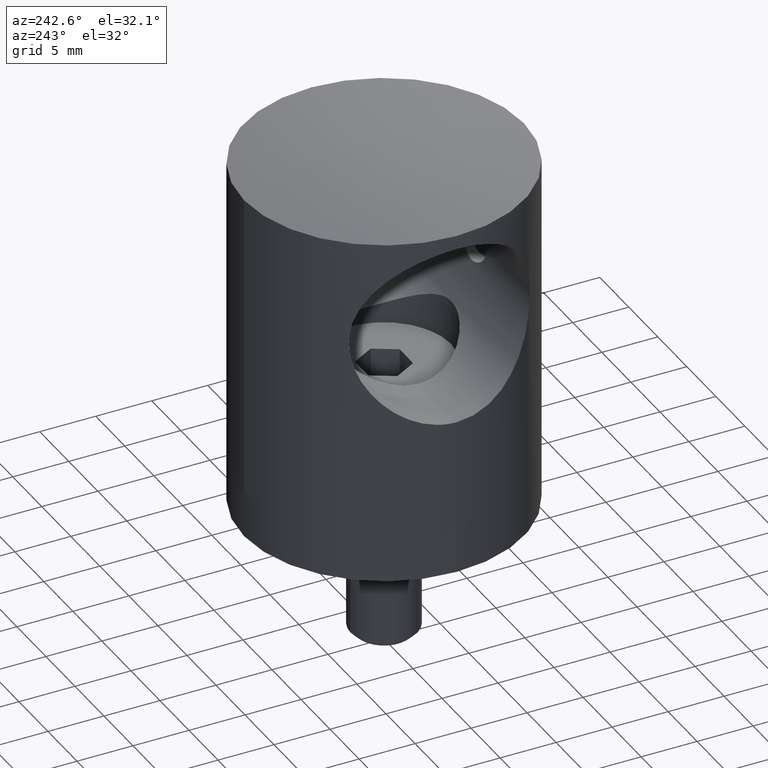
[diagram: clean part render]
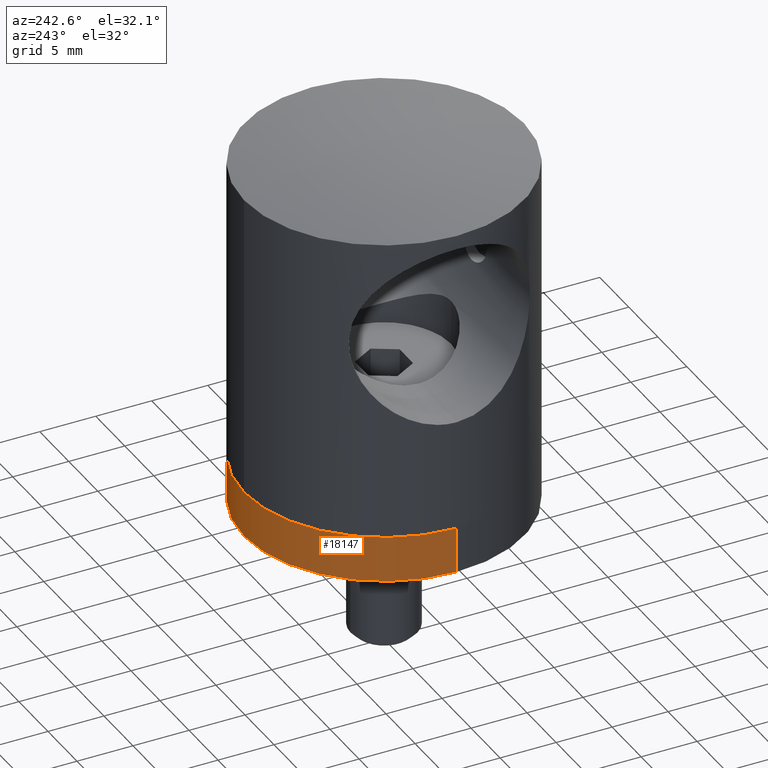
[diagram: same view with one face highlighted and labeled with its STEP entity id]
A machine part, auxiliary view. The second image highlights one B-rep face of the part: STEP entity #18147.
In plain terms, the highlighted cylindrical surface (partial cylindrical patch) has radius 12.5 mm, axis along (-0, -0, -1).
Its self-contained STEP definition (entity closure, byte-faithful):
#151 = VECTOR ( 'NONE', #2267, 1000.000000000000000 ) ;
#763 = CARTESIAN_POINT ( 'NONE',  ( -12.50000000000000000, 0.000000000000000000, -11.59999999999999964 ) ) ;
#860 = CYLINDRICAL_SURFACE ( 'NONE', #9243, 12.50000000000000000 ) ;
#1104 = ORIENTED_EDGE ( 'NONE', *, *, #15965, .T. ) ;
#1206 = VECTOR ( 'NONE', #11125, 1000.000000000000000 ) ;
#1937 = EDGE_CURVE ( 'NONE', #4521, #6788, #4554, .T. ) ;
#2195 = ORIENTED_EDGE ( 'NONE', *, *, #5478, .F. ) ;
#2267 = DIRECTION ( 'NONE',  ( -0.000000000000000000, -0.000000000000000000, -1.000000000000000000 ) ) ;
#2675 = CARTESIAN_POINT ( 'NONE',  ( 12.50000000000000000, 1.530808498934191521E-15, -7.500000000000000000 ) ) ;
#4403 = CARTESIAN_POINT ( 'NONE',  ( 0.000000000000000000, 0.000000000000000000, -11.14285714285700912 ) ) ;
#4521 = VERTEX_POINT ( 'NONE', #17119 ) ;
#4554 = LINE ( 'NONE', #12611, #1206 ) ;
#4823 = ORIENTED_EDGE ( 'NONE', *, *, #1937, .F. ) ;
#5197 = DIRECTION ( 'NONE',  ( -0.000000000000000000, -0.000000000000000000, -1.000000000000000000 ) ) ;
#5478 = EDGE_CURVE ( 'NONE', #6788, #14456, #17041, .T. ) ;
#6760 = DIRECTION ( 'NONE',  ( -0.000000000000000000, -0.000000000000000000, -1.000000000000000000 ) ) ;
#6788 = VERTEX_POINT ( 'NONE', #763 ) ;
#8086 = DIRECTION ( 'NONE',  ( -1.000000000000000000, 0.000000000000000000, 0.000000000000000000 ) ) ;
#8704 = AXIS2_PLACEMENT_3D ( 'NONE', #16026, #6760, #17546 ) ;
#9003 = FACE_OUTER_BOUND ( 'NONE', #16986, .T. ) ;
#9243 = AXIS2_PLACEMENT_3D ( 'NONE', #4403, #12160, #16497 ) ;
#10292 = AXIS2_PLACEMENT_3D ( 'NONE', #17263, #5197, #8086 ) ;
#10807 = CARTESIAN_POINT ( 'NONE',  ( 12.50000000000000000, 1.530808498934191521E-15, -11.59999999999999964 ) ) ;
#11125 = DIRECTION ( 'NONE',  ( -0.000000000000000000, -0.000000000000000000, -1.000000000000000000 ) ) ;
#11505 = CARTESIAN_POINT ( 'NONE',  ( 12.50000000000000000, 1.530808498934191521E-15, -11.14285714285700912 ) ) ;
#12160 = DIRECTION ( 'NONE',  ( -0.000000000000000000, -0.000000000000000000, -1.000000000000000000 ) ) ;
#12611 = CARTESIAN_POINT ( 'NONE',  ( -12.50000000000000000, 0.000000000000000000, -11.14285714285700912 ) ) ;
#13641 = CIRCLE ( 'NONE', #10292, 12.50000000000000000 ) ;
#13699 = ORIENTED_EDGE ( 'NONE', *, *, #17301, .T. ) ;
#14456 = VERTEX_POINT ( 'NONE', #10807 ) ;
#15965 = EDGE_CURVE ( 'NONE', #16630, #14456, #18684, .T. ) ;
#16026 = CARTESIAN_POINT ( 'NONE',  ( 0.000000000000000000, 0.000000000000000000, -11.59999999999999964 ) ) ;
#16497 = DIRECTION ( 'NONE',  ( -1.000000000000000000, 0.000000000000000000, 0.000000000000000000 ) ) ;
#16630 = VERTEX_POINT ( 'NONE', #2675 ) ;
#16986 = EDGE_LOOP ( 'NONE', ( #13699, #1104, #2195, #4823 ) ) ;
#17041 = CIRCLE ( 'NONE', #8704, 12.50000000000000000 ) ;
#17119 = CARTESIAN_POINT ( 'NONE',  ( -12.50000000000000000, 0.000000000000000000, -7.500000000000000000 ) ) ;
#17263 = CARTESIAN_POINT ( 'NONE',  ( 0.000000000000000000, 0.000000000000000000, -7.500000000000000000 ) ) ;
#17301 = EDGE_CURVE ( 'NONE', #4521, #16630, #13641, .T. ) ;
#17546 = DIRECTION ( 'NONE',  ( -1.000000000000000000, 0.000000000000000000, 0.000000000000000000 ) ) ;
#18147 = ADVANCED_FACE ( 'NONE', ( #9003 ), #860, .T. ) ;
#18684 = LINE ( 'NONE', #11505, #151 ) ;